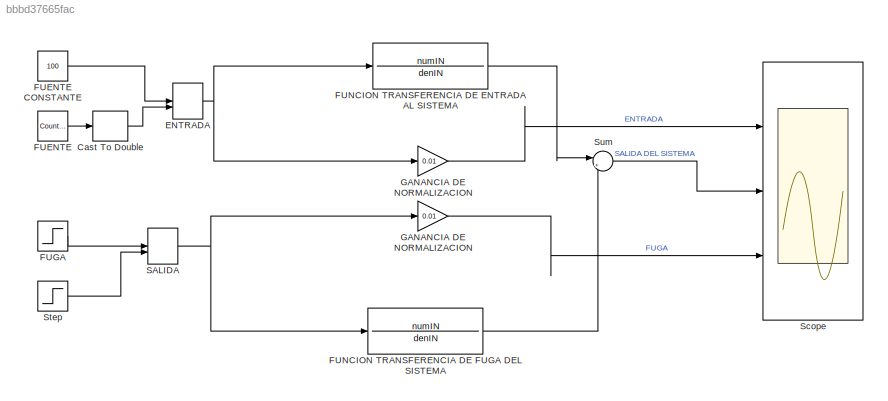
MODEL slx_bbbd37665fac
KIND model
CONFIG AbsTol = auto
CONFIG EnableMultiTasking = off
CONFIG FixedStep = auto
CONFIG MaxStep = auto
CONFIG MinStep = auto
CONFIG RelTol = 1e-3
CONFIG SampleTimeConstraint = Unconstrained
CONFIG Solver = VariableStepAuto
CONFIG SolverName = VariableStepAuto
CONFIG StartTime = 0.0
CONFIG StopTime = 200
BLOCK [DataTypeConversion] Cast To Double
  OutDataTypeStr = double
  RndMeth = Floor
  SaturateOnIntegerOverflow = off
BLOCK [ManualSwitch] ENTRADA
BLOCK [Reference] FUENTE   REF=simulink/Sources/Counter
Limited
  Ports = [0, 1]
  SourceBlock = simulink/Sources/Counter\nLimited
  SourceProductBaseCode = SL
  SourceProductName = Simulink
  SourceType = Counter Limited
BLOCK [Constant] FUENTE CONSTANTE
  Value = 100
BLOCK [Step] FUGA
  After = 10
  SampleTime = 1
  Time = 30
BLOCK [TransferFcn] FUNCION TRANSFERENCIA DE ENTRADA AL SISTEMA
  Denominator = denIN
  Numerator = numIN
BLOCK [TransferFcn] FUNCION TRANSFERENCIA DE FUGA DEL SISTEMA
  Denominator = denIN
  Numerator = numIN
BLOCK [Gain] GANANCIA DE NORMALIZACION
  Gain = 0.01
  OutDataTypeStr = Inherit: Inherit via internal rule
  ParamDataTypeStr = Inherit: Inherit via internal rule
  SaturateOnIntegerOverflow = off
BLOCK [Gain] GANANCIA DE NORMALIZACION 
  Gain = 0.01
  OutDataTypeStr = Inherit: Inherit via internal rule
  ParamDataTypeStr = Inherit: Inherit via internal rule
  SaturateOnIntegerOverflow = off
BLOCK [ManualSwitch] SALIDA
BLOCK [Scope] Scope
  Floating = off
  NumInputPorts = 3
  Ports = [3]
  ScopeSpecificationString = Simulink.scopes.TimeScopeBlockCfg('CurrentConfiguration', extmgr.ConfigurationSet(extmgr.Configuration('Core','General UI',true),extmgr.Configuration('Core','Source UI',true),extmgr.Configuration('Sources','WiredSimulink',true),extmgr.Configuration('Visuals','Time Domain',true,'SerializedDisplays',{struct('MinYLimReal','-0.14468','MaxYLimReal','1.30208','YLabelReal','','MinYLimMag','0.00000','MaxY...<+2052ch>
BLOCK [Step] Step
  After = 15
  SampleTime = 2
  Time = 50
BLOCK [Sum] Sum
  IconShape = round
  InputSameDT = off
  Inputs = |+-
  OutDataTypeStr = Inherit: Inherit via internal rule
  Ports = [2, 1]
  SaturateOnIntegerOverflow = off
LINE Cast To Double:1 -> ENTRADA:2
NET ENTRADA:1 -> FUNCION TRANSFERENCIA DE ENTRADA AL SISTEMA:1, GANANCIA DE NORMALIZACION:1
LINE FUENTE :1 -> Cast To Double:1
LINE FUENTE CONSTANTE:1 -> ENTRADA:1
LINE FUGA:1 -> SALIDA:1
LINE FUNCION TRANSFERENCIA DE ENTRADA AL SISTEMA:1 -> Sum:1
LINE FUNCION TRANSFERENCIA DE FUGA DEL SISTEMA:1 -> Sum:2
LINE GANANCIA DE NORMALIZACION :1 -> Scope:3
LINE GANANCIA DE NORMALIZACION:1 -> Scope:1
NET SALIDA:1 -> FUNCION TRANSFERENCIA DE FUGA DEL SISTEMA:1, GANANCIA DE NORMALIZACION :1
LINE Step:1 -> SALIDA:2
LINE Sum:1 -> Scope:2
note: NET lines group one-source signal fan-out (src -> all destinations, sorted); 1:1 wires keep LINE
